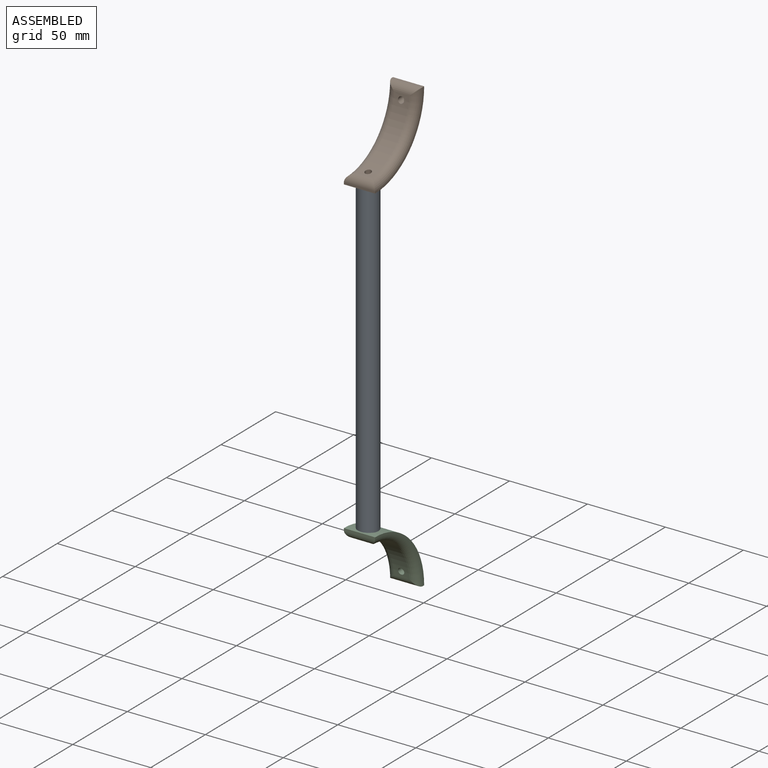
[diagram: assembled view]
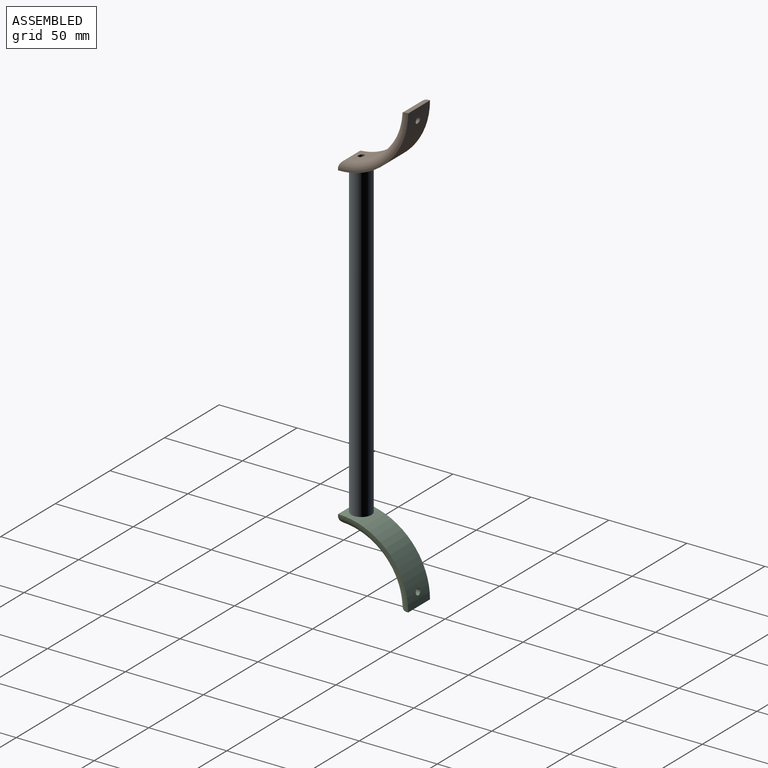
[diagram: assembled view, second angle]
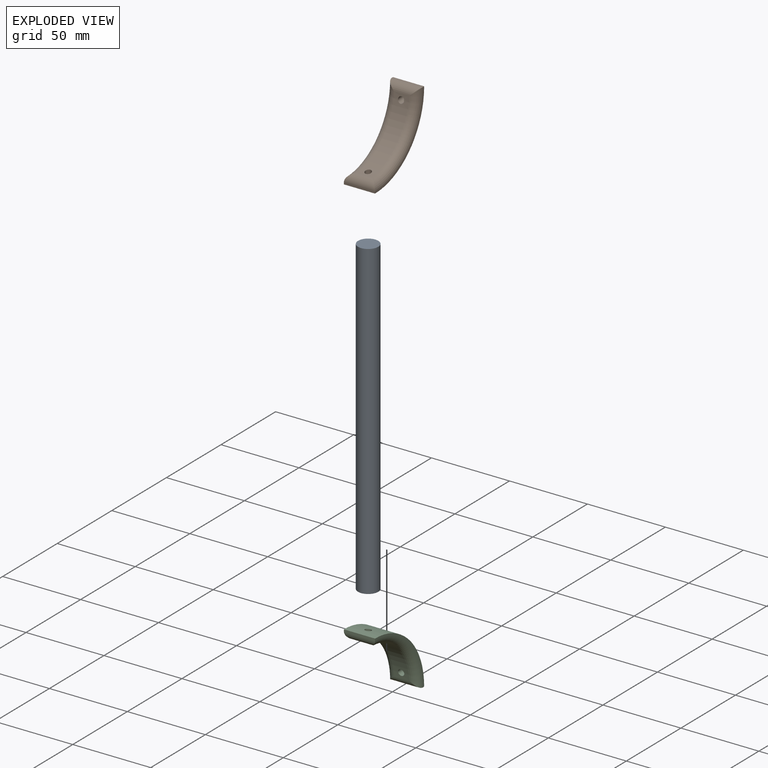
[diagram: exploded view]
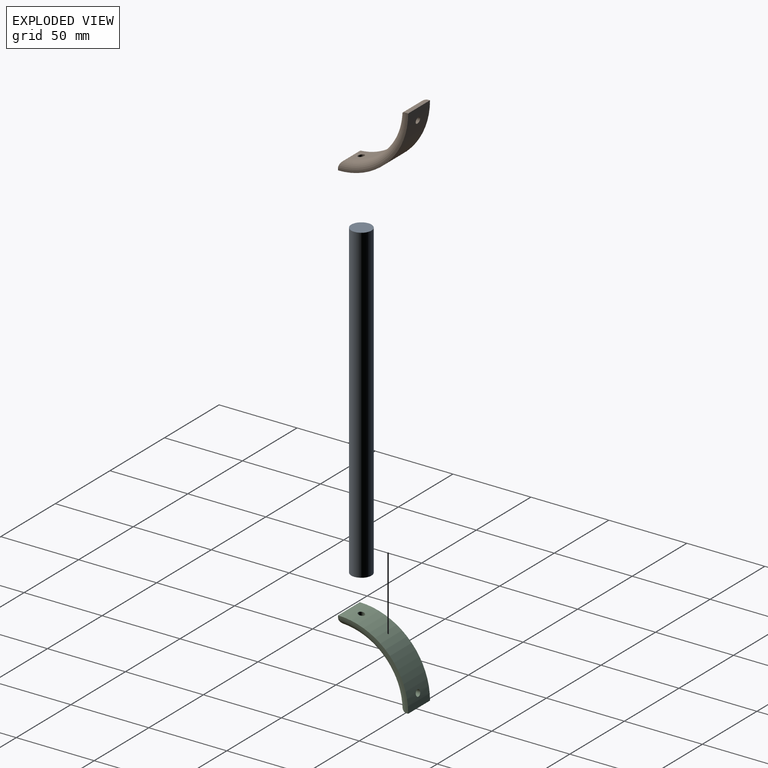
[diagram: exploded view, second angle]
ASSEMBLY  parts=3 mates=2
PART A: 3 faces, bbox 13x13x200 mm
  f0: cylinder r=6.5mm len=200mm, axis (0,0,-1), area 8168.1mm2, adj f1,f2
  f1: plane 13x13mm, normal (0,0,1), area 132.7mm2, adj f0
  f2: plane 13x13mm, normal (0,0,-1), area 132.7mm2, adj f0
PART B: 12 faces, bbox 51.5x51.5x20 mm
  f0: plane 20x1.29mm, normal (1,0,0), area 25.7mm2, adj f1,f4,f5,f8,f9,f10
  f1: cylinder r=45mm len=45mm, axis (0,0,-1), area 1388.2mm2, adj f0,f2,f4,f5,f6,f7
  f2: plane 20x1.29mm, normal (0,-1,0), area 25.7mm2, adj f1,f4,f5,f9,f10,f11
  f3: cylinder r=39mm len=34.32mm, axis (0,0,-1), area 498.1mm2, adj f6,f7,f8,f9,f10,f11
  f4: plane 45x45mm, normal (0,0,1), area 69.9mm2, adj f0,f1,f2,f9
  f5: plane 45x45mm, normal (0,0,-1), area 69.9mm2, adj f0,f1,f2,f10
  f6: cylinder r=2mm len=6.9mm, axis (0,-1,0), area 76.9mm2, adj f1,f3
  f7: cylinder r=2mm len=6.9mm, axis (1,0,0), area 76.9mm2, adj f1,f3
  f8: cylinder r=5mm len=19.98mm, axis (0,0,-1), area 118.6mm2, adj f0,f3,f9,f10
  f9: torus R=44mm, axis (0,0,1), area 479.1mm2, adj f0,f2,f3,f4,f8,f11
  f10: torus R=44mm, axis (0,0,1), area 479.1mm2, adj f0,f2,f3,f5,f8,f11
  f11: cylinder r=5mm len=19.98mm, axis (0,0,-1), area 118.6mm2, adj f2,f3,f9,f10
PART C: same geometry as B
PLACE A t=(-66.65,0.41,-0.54)mm
PLACE B rot(axis=(0,-1,0),90deg) t=(-34.63,12.13,244.1)mm
PLACE C rot(axis=(0,1,0),90deg) t=(-54.63,12.13,-45.18)mm
MATE fastened C.f7 <-> A.f0  axis (0,0,-1) through (-44.63,20.13,-0.54)mm
MATE fastened B.f7 <-> A.f0  axis (0,0,1) through (-44.63,20.13,199.46)mm
